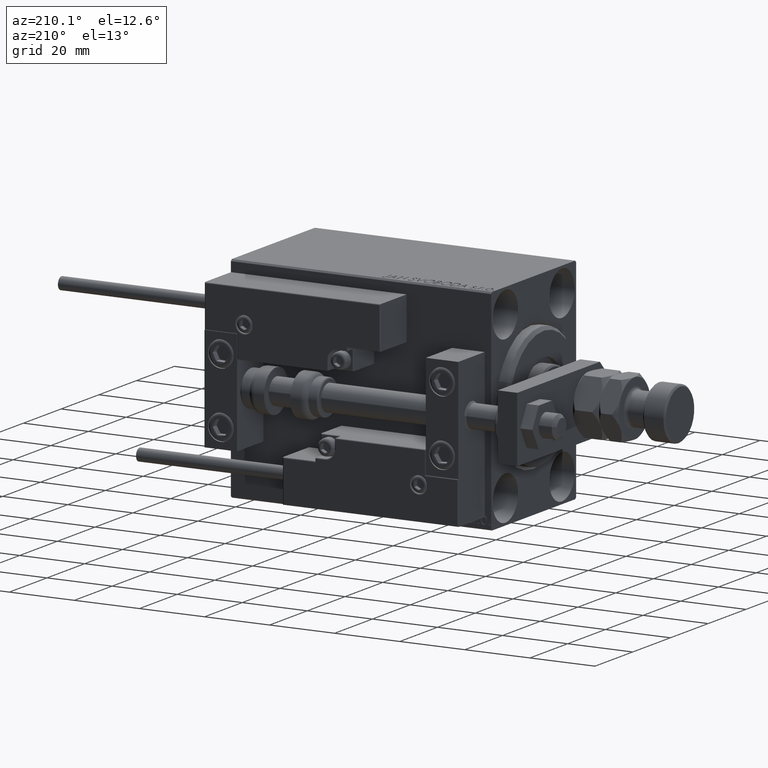
[diagram: clean part render]
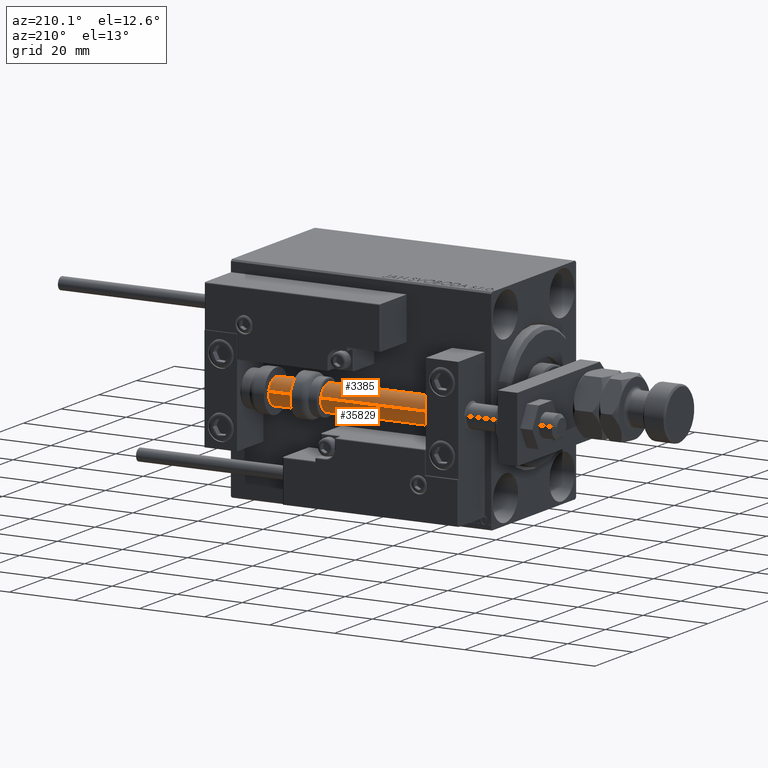
[diagram: same view with one multi-face feature highlighted, each face labeled with its STEP entity id]
A machine part, auxiliary view. The highlighted faces form ONE feature: a constant-radius fillet chain: 2 tangent blend faces with common blend radius 4 mm. The faces share edges in the B-rep.
Their STEP definitions:
[1] entity #3385 (Cylinder):
#2431 = DIRECTION ( 'NONE',  ( 1.000000000000000000, 0.000000000000000000, 0.000000000000000000 ) ) ;
#2565 = AXIS2_PLACEMENT_3D ( 'NONE', #9469, #50727, #47036 ) ;
#3172 = CARTESIAN_POINT ( 'NONE',  ( 4.000000000000000000, 4.898587196589412829E-16, 2.000000000000029310 ) ) ;
#3212 = EDGE_LOOP ( 'NONE', ( #15379, #40197, #32719, #51334 ) ) ;
#3311 = DIRECTION ( 'NONE',  ( -0.000000000000000000, -0.000000000000000000, -1.000000000000000000 ) ) ;
#3385 = ADVANCED_FACE ( 'NONE', ( #3570 ), #43506, .T. ) ;
#3570 = FACE_OUTER_BOUND ( 'NONE', #3212, .T. ) ;
#3966 = AXIS2_PLACEMENT_3D ( 'NONE', #39295, #3311, #31692 ) ;
#5403 = CARTESIAN_POINT ( 'NONE',  ( -4.000000000000000000, 0.000000000000000000, 80.00000000000000000 ) ) ;
#5896 = CIRCLE ( 'NONE', #2565, 4.000000000000000000 ) ;
#5991 = CARTESIAN_POINT ( 'NONE',  ( -4.000000000000000000, 0.000000000000000000, 80.00000000000000000 ) ) ;
#6374 = CARTESIAN_POINT ( 'NONE',  ( 0.000000000000000000, 0.000000000000000000, 80.00000000000000000 ) ) ;
#7219 = LINE ( 'NONE', #23520, #39516 ) ;
#9469 = CARTESIAN_POINT ( 'NONE',  ( 0.000000000000000000, 0.000000000000000000, 2.000000000000029310 ) ) ;
#11226 = VERTEX_POINT ( 'NONE', #23744 ) ;
#11508 = CARTESIAN_POINT ( 'NONE',  ( 4.000000000000000000, 4.898587196589412829E-16, 80.00000000000000000 ) ) ;
#14885 = DIRECTION ( 'NONE',  ( -0.000000000000000000, -0.000000000000000000, -1.000000000000000000 ) ) ;
#15379 = ORIENTED_EDGE ( 'NONE', *, *, #22484, .F. ) ;
#19348 = VECTOR ( 'NONE', #14885, 1000.000000000000000 ) ;
#22484 = EDGE_CURVE ( 'NONE', #33035, #41116, #46029, .T. ) ;
#23520 = CARTESIAN_POINT ( 'NONE',  ( 4.000000000000000000, 4.898587196589412829E-16, 80.00000000000000000 ) ) ;
#23744 = CARTESIAN_POINT ( 'NONE',  ( -4.000000000000000000, 0.000000000000000000, 2.000000000000029310 ) ) ;
#26982 = LINE ( 'NONE', #5991, #19348 ) ;
#27346 = EDGE_CURVE ( 'NONE', #33035, #32676, #7219, .T. ) ;
#27569 = AXIS2_PLACEMENT_3D ( 'NONE', #6374, #42371, #2431 ) ;
#31692 = DIRECTION ( 'NONE',  ( -1.000000000000000000, 0.000000000000000000, 0.000000000000000000 ) ) ;
#32676 = VERTEX_POINT ( 'NONE', #3172 ) ;
#32719 = ORIENTED_EDGE ( 'NONE', *, *, #45808, .T. ) ;
#33035 = VERTEX_POINT ( 'NONE', #11508 ) ;
#39295 = CARTESIAN_POINT ( 'NONE',  ( 0.000000000000000000, 0.000000000000000000, 80.00000000000000000 ) ) ;
#39516 = VECTOR ( 'NONE', #43749, 1000.000000000000000 ) ;
#40197 = ORIENTED_EDGE ( 'NONE', *, *, #27346, .T. ) ;
#41116 = VERTEX_POINT ( 'NONE', #5403 ) ;
#42371 = DIRECTION ( 'NONE',  ( 0.000000000000000000, 0.000000000000000000, 1.000000000000000000 ) ) ;
#43506 = CYLINDRICAL_SURFACE ( 'NONE', #3966, 4.000000000000000000 ) ;
#43749 = DIRECTION ( 'NONE',  ( -0.000000000000000000, -0.000000000000000000, -1.000000000000000000 ) ) ;
#45808 = EDGE_CURVE ( 'NONE', #32676, #11226, #5896, .T. ) ;
#46029 = CIRCLE ( 'NONE', #27569, 4.000000000000000000 ) ;
#47036 = DIRECTION ( 'NONE',  ( 1.000000000000000000, 0.000000000000000000, 0.000000000000000000 ) ) ;
#50029 = EDGE_CURVE ( 'NONE', #41116, #11226, #26982, .T. ) ;
#50727 = DIRECTION ( 'NONE',  ( -0.000000000000000000, -0.000000000000000000, 1.000000000000000000 ) ) ;
#51334 = ORIENTED_EDGE ( 'NONE', *, *, #50029, .F. ) ;
[2] entity #35829 (Cylinder):
#3172 = CARTESIAN_POINT ( 'NONE',  ( 4.000000000000000000, 4.898587196589412829E-16, 2.000000000000029310 ) ) ;
#3758 = DIRECTION ( 'NONE',  ( 0.000000000000000000, 0.000000000000000000, 1.000000000000000000 ) ) ;
#5403 = CARTESIAN_POINT ( 'NONE',  ( -4.000000000000000000, 0.000000000000000000, 80.00000000000000000 ) ) ;
#5991 = CARTESIAN_POINT ( 'NONE',  ( -4.000000000000000000, 0.000000000000000000, 80.00000000000000000 ) ) ;
#6661 = CARTESIAN_POINT ( 'NONE',  ( 0.000000000000000000, 0.000000000000000000, 80.00000000000000000 ) ) ;
#6984 = CIRCLE ( 'NONE', #26322, 4.000000000000000000 ) ;
#7165 = DIRECTION ( 'NONE',  ( 1.000000000000000000, 0.000000000000000000, 0.000000000000000000 ) ) ;
#7219 = LINE ( 'NONE', #23520, #39516 ) ;
#7556 = FACE_OUTER_BOUND ( 'NONE', #22983, .T. ) ;
#9067 = DIRECTION ( 'NONE',  ( 1.000000000000000000, 0.000000000000000000, 0.000000000000000000 ) ) ;
#11226 = VERTEX_POINT ( 'NONE', #23744 ) ;
#11508 = CARTESIAN_POINT ( 'NONE',  ( 4.000000000000000000, 4.898587196589412829E-16, 80.00000000000000000 ) ) ;
#14885 = DIRECTION ( 'NONE',  ( -0.000000000000000000, -0.000000000000000000, -1.000000000000000000 ) ) ;
#15256 = ORIENTED_EDGE ( 'NONE', *, *, #50029, .T. ) ;
#17230 = CARTESIAN_POINT ( 'NONE',  ( 0.000000000000000000, 0.000000000000000000, 2.000000000000029310 ) ) ;
#18710 = DIRECTION ( 'NONE',  ( -0.000000000000000000, -0.000000000000000000, 1.000000000000000000 ) ) ;
#19348 = VECTOR ( 'NONE', #14885, 1000.000000000000000 ) ;
#19388 = CARTESIAN_POINT ( 'NONE',  ( 0.000000000000000000, 0.000000000000000000, 80.00000000000000000 ) ) ;
#19649 = CYLINDRICAL_SURFACE ( 'NONE', #31297, 4.000000000000000000 ) ;
#22444 = EDGE_CURVE ( 'NONE', #11226, #32676, #28423, .T. ) ;
#22983 = EDGE_LOOP ( 'NONE', ( #32435, #27001, #15256, #35493 ) ) ;
#23520 = CARTESIAN_POINT ( 'NONE',  ( 4.000000000000000000, 4.898587196589412829E-16, 80.00000000000000000 ) ) ;
#23744 = CARTESIAN_POINT ( 'NONE',  ( -4.000000000000000000, 0.000000000000000000, 2.000000000000029310 ) ) ;
#24109 = DIRECTION ( 'NONE',  ( -0.000000000000000000, -0.000000000000000000, -1.000000000000000000 ) ) ;
#26322 = AXIS2_PLACEMENT_3D ( 'NONE', #6661, #3758, #7165 ) ;
#26982 = LINE ( 'NONE', #5991, #19348 ) ;
#27001 = ORIENTED_EDGE ( 'NONE', *, *, #36283, .F. ) ;
#27346 = EDGE_CURVE ( 'NONE', #33035, #32676, #7219, .T. ) ;
#28423 = CIRCLE ( 'NONE', #32592, 4.000000000000000000 ) ;
#31297 = AXIS2_PLACEMENT_3D ( 'NONE', #19388, #24109, #48041 ) ;
#32435 = ORIENTED_EDGE ( 'NONE', *, *, #27346, .F. ) ;
#32592 = AXIS2_PLACEMENT_3D ( 'NONE', #17230, #18710, #9067 ) ;
#32676 = VERTEX_POINT ( 'NONE', #3172 ) ;
#33035 = VERTEX_POINT ( 'NONE', #11508 ) ;
#35493 = ORIENTED_EDGE ( 'NONE', *, *, #22444, .T. ) ;
#35829 = ADVANCED_FACE ( 'NONE', ( #7556 ), #19649, .T. ) ;
#36283 = EDGE_CURVE ( 'NONE', #41116, #33035, #6984, .T. ) ;
#39516 = VECTOR ( 'NONE', #43749, 1000.000000000000000 ) ;
#41116 = VERTEX_POINT ( 'NONE', #5403 ) ;
#43749 = DIRECTION ( 'NONE',  ( -0.000000000000000000, -0.000000000000000000, -1.000000000000000000 ) ) ;
#48041 = DIRECTION ( 'NONE',  ( -1.000000000000000000, 0.000000000000000000, 0.000000000000000000 ) ) ;
#50029 = EDGE_CURVE ( 'NONE', #41116, #11226, #26982, .T. ) ;